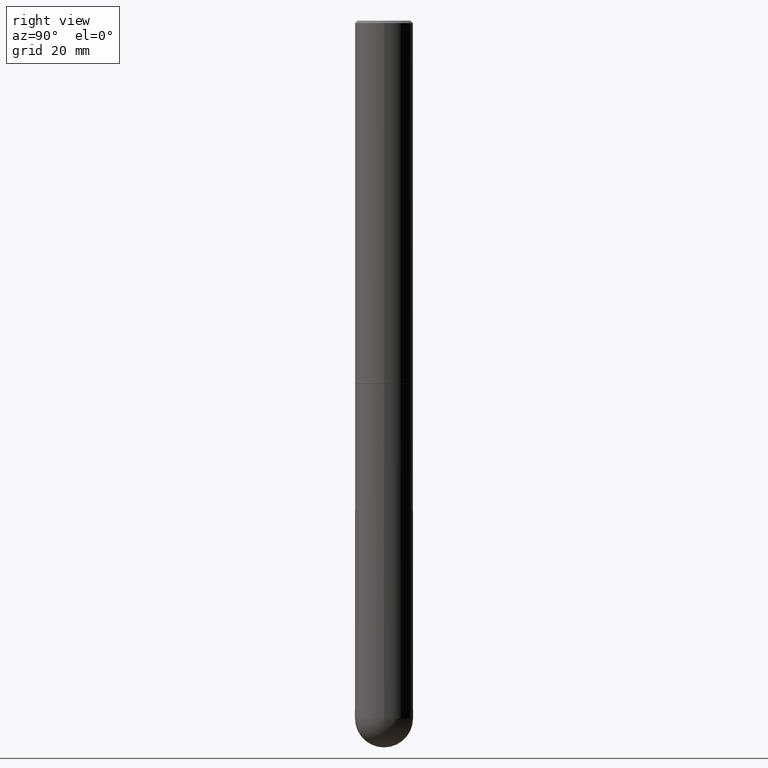
[diagram: clean part render]
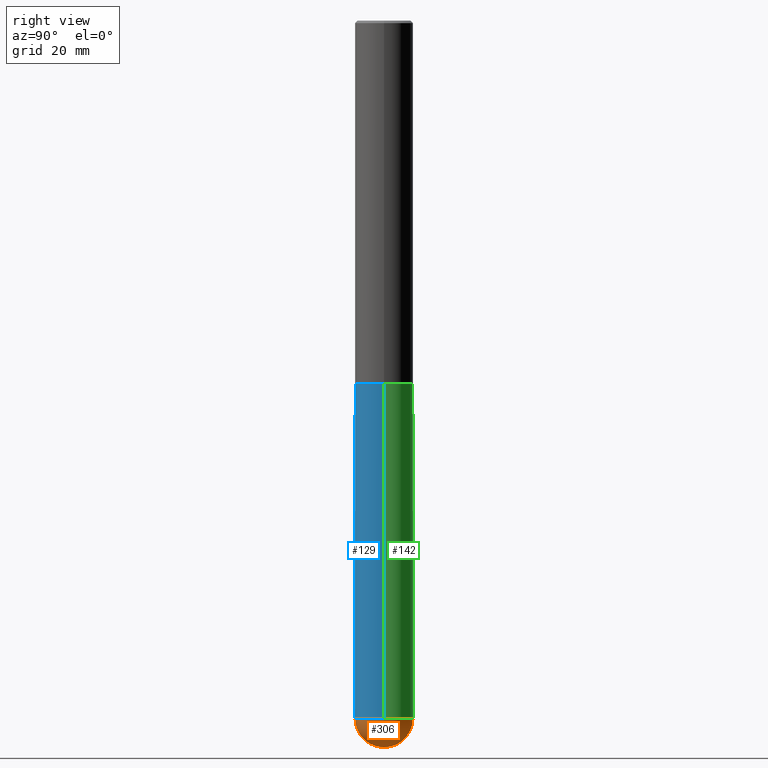
[diagram: same view with three faces highlighted in distinct colors, each labeled with its STEP entity id]
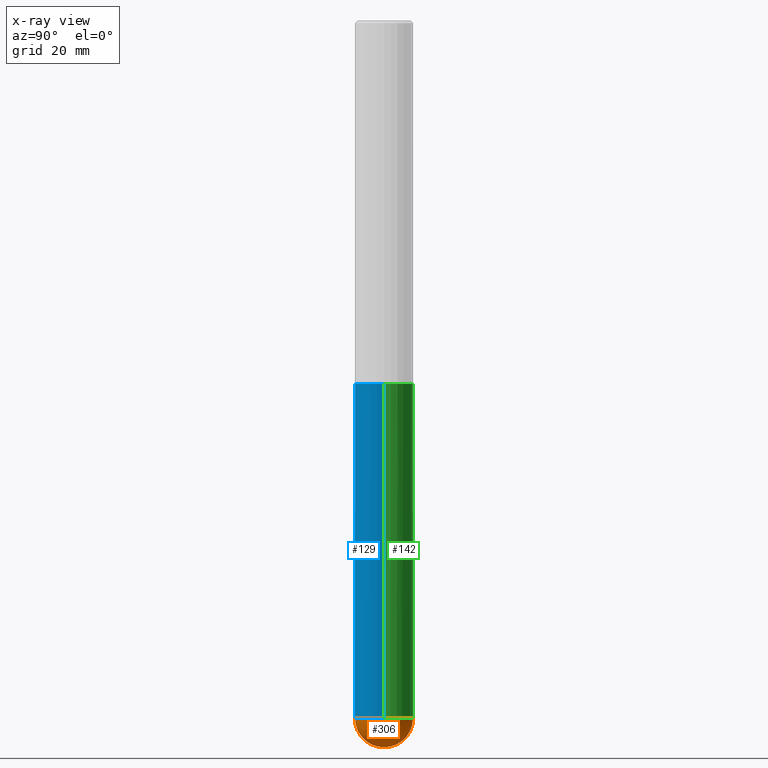
[diagram: x-ray of the same camera — body ghosted, the three highlighted faces saturated]
A machine part, right view with three faces highlighted in distinct colors.
The next image is the same camera in x-ray (body ghosted, the three faces saturated) — at least one of them is partly hidden behind the body in this view.
Their STEP definitions:

[orange] entity #306 — the highlighted spherical surface has radius 5.9995 mm.
#8 = CIRCLE ( 'NONE', #18, 0.2362000000000002709 ) ;
#15 = CIRCLE ( 'NONE', #44, 0.2361999999999999933 ) ;
#18 = AXIS2_PLACEMENT_3D ( 'NONE', #398, #103, #30 ) ;
#30 = DIRECTION ( 'NONE',  ( 6.982962677686265922E-15, 1.000000000000000000, 0.000000000000000000 ) ) ;
#33 = ORIENTED_EDGE ( 'NONE', *, *, #401, .F. ) ;
#44 = AXIS2_PLACEMENT_3D ( 'NONE', #70, #193, #397 ) ;
#46 = SPHERICAL_SURFACE ( 'NONE', #314, 0.2362000000000002709 ) ;
#55 = CARTESIAN_POINT ( 'NONE',  ( 1.353297652499150981E-28, -2.026843752244349558E-14, -5.669299999999999784 ) ) ;
#62 = EDGE_LOOP ( 'NONE', ( #33, #224, #120, #166 ) ) ;
#70 = CARTESIAN_POINT ( 'NONE',  ( 1.386409630290539494E-28, -1.979425515430344370E-14, -5.669299999999999784 ) ) ;
#77 = AXIS2_PLACEMENT_3D ( 'NONE', #130, #312, #191 ) ;
#79 = DIRECTION ( 'NONE',  ( -1.000000000000000000, 7.105427357601001070E-15, -4.926315508542082329E-29 ) ) ;
#81 = DIRECTION ( 'NONE',  ( -1.000000000000000000, 6.982962677686265922E-15, -4.883557194083112901E-29 ) ) ;
#95 = AXIS2_PLACEMENT_3D ( 'NONE', #228, #79, #335 ) ;
#103 = DIRECTION ( 'NONE',  ( 1.000000000000000000, -6.982962677686265922E-15, 4.883557194083112340E-29 ) ) ;
#120 = ORIENTED_EDGE ( 'NONE', *, *, #356, .F. ) ;
#130 = CARTESIAN_POINT ( 'NONE',  ( 1.386409630290539494E-28, -1.979425515430344370E-14, -5.669299999999999784 ) ) ;
#132 = EDGE_CURVE ( 'NONE', #175, #351, #146, .T. ) ;
#138 = EDGE_CURVE ( 'NONE', #226, #359, #8, .T. ) ;
#146 = CIRCLE ( 'NONE', #77, 0.2361999999999999933 ) ;
#166 = ORIENTED_EDGE ( 'NONE', *, *, #132, .F. ) ;
#175 = VERTEX_POINT ( 'NONE', #399 ) ;
#191 = DIRECTION ( 'NONE',  ( 1.000000000000000000, -6.982962677686273021E-15, 0.000000000000000000 ) ) ;
#193 = DIRECTION ( 'NONE',  ( -2.445468806185136597E-29, 3.491481338843145583E-15, 1.000000000000000000 ) ) ;
#198 = FACE_OUTER_BOUND ( 'NONE', #62, .T. ) ;
#218 = CARTESIAN_POINT ( 'NONE',  ( 1.649375784469633984E-15, 0.2361999999999800925, -5.669300000000000672 ) ) ;
#224 = ORIENTED_EDGE ( 'NONE', *, *, #138, .T. ) ;
#226 = VERTEX_POINT ( 'NONE', #390 ) ;
#228 = CARTESIAN_POINT ( 'NONE',  ( 1.353297652499150981E-28, -2.026843752244349558E-14, -5.669299999999999784 ) ) ;
#256 = DIRECTION ( 'NONE',  ( 6.982962677686265922E-15, 1.000000000000000000, -4.626330217890364603E-15 ) ) ;
#267 = CIRCLE ( 'NONE', #95, 0.2362000000000002709 ) ;
#306 = ADVANCED_FACE ( 'NONE', ( #198 ), #46, .T. ) ;
#312 = DIRECTION ( 'NONE',  ( -2.445468806185136597E-29, 3.491481338843145583E-15, 1.000000000000000000 ) ) ;
#314 = AXIS2_PLACEMENT_3D ( 'NONE', #55, #81, #256 ) ;
#335 = DIRECTION ( 'NONE',  ( -7.105427357601001070E-15, -1.000000000000000000, 0.000000000000000000 ) ) ;
#351 = VERTEX_POINT ( 'NONE', #363 ) ;
#356 = EDGE_CURVE ( 'NONE', #351, #359, #15, .T. ) ;
#359 = VERTEX_POINT ( 'NONE', #218 ) ;
#363 = CARTESIAN_POINT ( 'NONE',  ( 0.2361999999999999933, -1.670115183622230141E-14, -5.669299999999999784 ) ) ;
#390 = CARTESIAN_POINT ( 'NONE',  ( 1.412069577088764835E-28, -2.107866233598031943E-14, -5.905499999999999972 ) ) ;
#397 = DIRECTION ( 'NONE',  ( 1.000000000000000000, -6.982962677686273021E-15, 0.000000000000000000 ) ) ;
#398 = CARTESIAN_POINT ( 'NONE',  ( 1.353297652499150981E-28, -2.026843752244349558E-14, -5.669299999999999784 ) ) ;
#399 = CARTESIAN_POINT ( 'NONE',  ( -1.678301941865220316E-15, -0.2362000000000201716, -5.669299999999998896 ) ) ;
#401 = EDGE_CURVE ( 'NONE', #226, #175, #267, .T. ) ;

[blue] entity #129 — the highlighted cylindrical surface (edge-blend (fillet) strip) has radius 5.9995 mm, axis along (-0, 0, 1).
#11 = LINE ( 'NONE', #252, #88 ) ;
#19 = DIRECTION ( 'NONE',  ( -2.445468806185136597E-29, 3.491481338843145583E-15, 1.000000000000000000 ) ) ;
#31 = CIRCLE ( 'NONE', #381, 0.2361999999999999933 ) ;
#34 = CARTESIAN_POINT ( 'NONE',  ( -0.2361999999999999933, 1.678301941865356591E-15, -1.161852468318208757E-29 ) ) ;
#71 = CARTESIAN_POINT ( 'NONE',  ( 0.2361999999999999933, -1.195867273367164996E-14, -2.952700000000000102 ) ) ;
#77 = AXIS2_PLACEMENT_3D ( 'NONE', #130, #312, #191 ) ;
#85 = EDGE_CURVE ( 'NONE', #186, #175, #179, .T. ) ;
#88 = VECTOR ( 'NONE', #133, 39.37007874015748143 ) ;
#116 = CARTESIAN_POINT ( 'NONE',  ( 1.386409630290539494E-28, -1.979425515430344370E-14, -5.669299999999999784 ) ) ;
#118 = ORIENTED_EDGE ( 'NONE', *, *, #348, .F. ) ;
#119 = EDGE_CURVE ( 'NONE', #186, #346, #345, .T. ) ;
#129 = ADVANCED_FACE ( 'NONE', ( #182 ), #189, .T. ) ;
#130 = CARTESIAN_POINT ( 'NONE',  ( 1.386409630290539494E-28, -1.979425515430344370E-14, -5.669299999999999784 ) ) ;
#132 = EDGE_CURVE ( 'NONE', #175, #351, #146, .T. ) ;
#133 = DIRECTION ( 'NONE',  ( -2.445468806185136877E-29, 3.491481338843145188E-15, 1.000000000000000000 ) ) ;
#146 = CIRCLE ( 'NONE', #77, 0.2361999999999999933 ) ;
#167 = VERTEX_POINT ( 'NONE', #71 ) ;
#172 = CARTESIAN_POINT ( 'NONE',  ( -0.2361999999999999933, -1.337347410988744218E-14, -2.952700000000000102 ) ) ;
#174 = EDGE_CURVE ( 'NONE', #351, #167, #11, .T. ) ;
#175 = VERTEX_POINT ( 'NONE', #399 ) ;
#179 = CIRCLE ( 'NONE', #281, 0.2361999999999999933 ) ;
#182 = FACE_OUTER_BOUND ( 'NONE', #331, .T. ) ;
#186 = VERTEX_POINT ( 'NONE', #284 ) ;
#189 = CYLINDRICAL_SURFACE ( 'NONE', #247, 0.2361999999999999933 ) ;
#190 = ORIENTED_EDGE ( 'NONE', *, *, #132, .T. ) ;
#191 = DIRECTION ( 'NONE',  ( 1.000000000000000000, -6.982962677686273021E-15, 0.000000000000000000 ) ) ;
#202 = CARTESIAN_POINT ( 'NONE',  ( 7.220735744022852519E-29, -1.030929694920215502E-14, -2.952700000000000102 ) ) ;
#217 = DIRECTION ( 'NONE',  ( -2.445468806185136597E-29, 3.491481338843145583E-15, 1.000000000000000000 ) ) ;
#243 = DIRECTION ( 'NONE',  ( 1.000000000000000000, -6.982962677686273021E-15, 0.000000000000000000 ) ) ;
#247 = AXIS2_PLACEMENT_3D ( 'NONE', #323, #217, #277 ) ;
#252 = CARTESIAN_POINT ( 'NONE',  ( 0.2361999999999999933, -1.649375784469496131E-15, 1.151752954443000088E-29 ) ) ;
#263 = DIRECTION ( 'NONE',  ( 1.000000000000000000, -6.982962677686265133E-15, 0.000000000000000000 ) ) ;
#277 = DIRECTION ( 'NONE',  ( 1.000000000000000000, -6.982962677686266711E-15, 4.876176775795936353E-29 ) ) ;
#281 = AXIS2_PLACEMENT_3D ( 'NONE', #116, #311, #243 ) ;
#284 = CARTESIAN_POINT ( 'NONE',  ( -0.2361999999999999933, -1.337347410988744691E-14, -5.669299999999999784 ) ) ;
#288 = VECTOR ( 'NONE', #349, 39.37007874015748143 ) ;
#311 = DIRECTION ( 'NONE',  ( -2.445468806185136597E-29, 3.491481338843145583E-15, 1.000000000000000000 ) ) ;
#312 = DIRECTION ( 'NONE',  ( -2.445468806185136597E-29, 3.491481338843145583E-15, 1.000000000000000000 ) ) ;
#322 = ORIENTED_EDGE ( 'NONE', *, *, #85, .T. ) ;
#323 = CARTESIAN_POINT ( 'NONE',  ( 0.000000000000000000, 0.000000000000000000, 0.000000000000000000 ) ) ;
#331 = EDGE_LOOP ( 'NONE', ( #411, #322, #190, #392, #118 ) ) ;
#345 = LINE ( 'NONE', #34, #288 ) ;
#346 = VERTEX_POINT ( 'NONE', #172 ) ;
#348 = EDGE_CURVE ( 'NONE', #346, #167, #31, .T. ) ;
#349 = DIRECTION ( 'NONE',  ( -2.445468806185136877E-29, 3.491481338843145188E-15, 1.000000000000000000 ) ) ;
#351 = VERTEX_POINT ( 'NONE', #363 ) ;
#363 = CARTESIAN_POINT ( 'NONE',  ( 0.2361999999999999933, -1.670115183622230141E-14, -5.669299999999999784 ) ) ;
#381 = AXIS2_PLACEMENT_3D ( 'NONE', #202, #19, #263 ) ;
#392 = ORIENTED_EDGE ( 'NONE', *, *, #174, .T. ) ;
#399 = CARTESIAN_POINT ( 'NONE',  ( -1.678301941865220316E-15, -0.2362000000000201716, -5.669299999999998896 ) ) ;
#411 = ORIENTED_EDGE ( 'NONE', *, *, #119, .F. ) ;

[green] entity #142 — the highlighted cylindrical surface (edge-blend (fillet) strip) has radius 5.9995 mm, axis along (-0, 0, 1).
#11 = LINE ( 'NONE', #252, #88 ) ;
#15 = CIRCLE ( 'NONE', #44, 0.2361999999999999933 ) ;
#34 = CARTESIAN_POINT ( 'NONE',  ( -0.2361999999999999933, 1.678301941865356591E-15, -1.161852468318208757E-29 ) ) ;
#36 = EDGE_LOOP ( 'NONE', ( #303, #308, #91, #52, #58 ) ) ;
#39 = CIRCLE ( 'NONE', #299, 0.2361999999999999933 ) ;
#44 = AXIS2_PLACEMENT_3D ( 'NONE', #70, #193, #397 ) ;
#52 = ORIENTED_EDGE ( 'NONE', *, *, #174, .F. ) ;
#58 = ORIENTED_EDGE ( 'NONE', *, *, #356, .T. ) ;
#68 = CARTESIAN_POINT ( 'NONE',  ( 1.386409630290539494E-28, -1.979425515430344370E-14, -5.669299999999999784 ) ) ;
#70 = CARTESIAN_POINT ( 'NONE',  ( 1.386409630290539494E-28, -1.979425515430344370E-14, -5.669299999999999784 ) ) ;
#71 = CARTESIAN_POINT ( 'NONE',  ( 0.2361999999999999933, -1.195867273367164996E-14, -2.952700000000000102 ) ) ;
#88 = VECTOR ( 'NONE', #133, 39.37007874015748143 ) ;
#90 = CARTESIAN_POINT ( 'NONE',  ( 0.000000000000000000, 0.000000000000000000, 0.000000000000000000 ) ) ;
#91 = ORIENTED_EDGE ( 'NONE', *, *, #227, .F. ) ;
#100 = DIRECTION ( 'NONE',  ( 1.000000000000000000, -6.982962677686265133E-15, 0.000000000000000000 ) ) ;
#119 = EDGE_CURVE ( 'NONE', #186, #346, #345, .T. ) ;
#121 = AXIS2_PLACEMENT_3D ( 'NONE', #90, #211, #156 ) ;
#125 = EDGE_CURVE ( 'NONE', #359, #186, #39, .T. ) ;
#128 = DIRECTION ( 'NONE',  ( -2.445468806185136597E-29, 3.491481338843145583E-15, 1.000000000000000000 ) ) ;
#133 = DIRECTION ( 'NONE',  ( -2.445468806185136877E-29, 3.491481338843145188E-15, 1.000000000000000000 ) ) ;
#142 = ADVANCED_FACE ( 'NONE', ( #389 ), #360, .T. ) ;
#156 = DIRECTION ( 'NONE',  ( 1.000000000000000000, -6.982962677686266711E-15, 4.876176775795936353E-29 ) ) ;
#159 = CARTESIAN_POINT ( 'NONE',  ( 7.220735744022852519E-29, -1.030929694920215502E-14, -2.952700000000000102 ) ) ;
#167 = VERTEX_POINT ( 'NONE', #71 ) ;
#172 = CARTESIAN_POINT ( 'NONE',  ( -0.2361999999999999933, -1.337347410988744218E-14, -2.952700000000000102 ) ) ;
#174 = EDGE_CURVE ( 'NONE', #351, #167, #11, .T. ) ;
#186 = VERTEX_POINT ( 'NONE', #284 ) ;
#193 = DIRECTION ( 'NONE',  ( -2.445468806185136597E-29, 3.491481338843145583E-15, 1.000000000000000000 ) ) ;
#211 = DIRECTION ( 'NONE',  ( -2.445468806185136597E-29, 3.491481338843145583E-15, 1.000000000000000000 ) ) ;
#218 = CARTESIAN_POINT ( 'NONE',  ( 1.649375784469633984E-15, 0.2361999999999800925, -5.669300000000000672 ) ) ;
#227 = EDGE_CURVE ( 'NONE', #167, #346, #367, .T. ) ;
#248 = DIRECTION ( 'NONE',  ( -2.445468806185136597E-29, 3.491481338843145583E-15, 1.000000000000000000 ) ) ;
#252 = CARTESIAN_POINT ( 'NONE',  ( 0.2361999999999999933, -1.649375784469496131E-15, 1.151752954443000088E-29 ) ) ;
#284 = CARTESIAN_POINT ( 'NONE',  ( -0.2361999999999999933, -1.337347410988744691E-14, -5.669299999999999784 ) ) ;
#288 = VECTOR ( 'NONE', #349, 39.37007874015748143 ) ;
#299 = AXIS2_PLACEMENT_3D ( 'NONE', #68, #248, #316 ) ;
#303 = ORIENTED_EDGE ( 'NONE', *, *, #125, .T. ) ;
#308 = ORIENTED_EDGE ( 'NONE', *, *, #119, .T. ) ;
#316 = DIRECTION ( 'NONE',  ( 1.000000000000000000, -6.982962677686273021E-15, 0.000000000000000000 ) ) ;
#345 = LINE ( 'NONE', #34, #288 ) ;
#346 = VERTEX_POINT ( 'NONE', #172 ) ;
#349 = DIRECTION ( 'NONE',  ( -2.445468806185136877E-29, 3.491481338843145188E-15, 1.000000000000000000 ) ) ;
#351 = VERTEX_POINT ( 'NONE', #363 ) ;
#356 = EDGE_CURVE ( 'NONE', #351, #359, #15, .T. ) ;
#359 = VERTEX_POINT ( 'NONE', #218 ) ;
#360 = CYLINDRICAL_SURFACE ( 'NONE', #121, 0.2361999999999999933 ) ;
#363 = CARTESIAN_POINT ( 'NONE',  ( 0.2361999999999999933, -1.670115183622230141E-14, -5.669299999999999784 ) ) ;
#367 = CIRCLE ( 'NONE', #385, 0.2361999999999999933 ) ;
#385 = AXIS2_PLACEMENT_3D ( 'NONE', #159, #128, #100 ) ;
#389 = FACE_OUTER_BOUND ( 'NONE', #36, .T. ) ;
#397 = DIRECTION ( 'NONE',  ( 1.000000000000000000, -6.982962677686273021E-15, 0.000000000000000000 ) ) ;